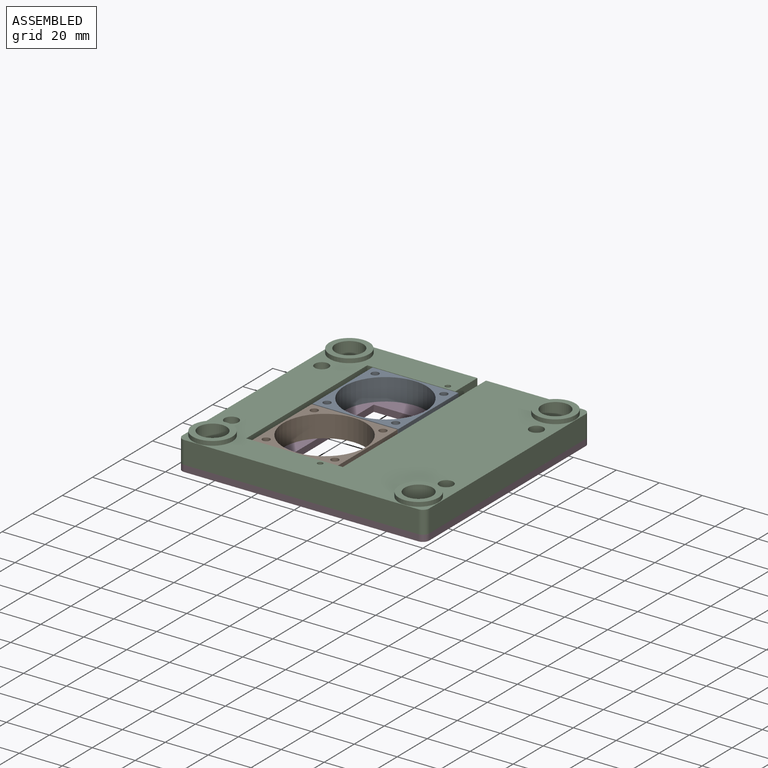
[diagram: assembled view]
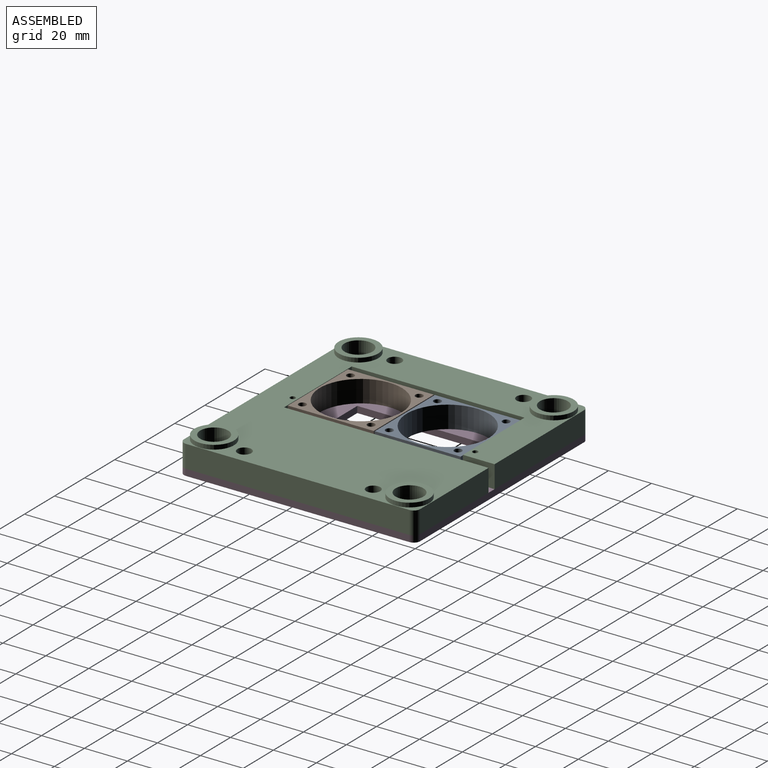
[diagram: assembled view, second angle]
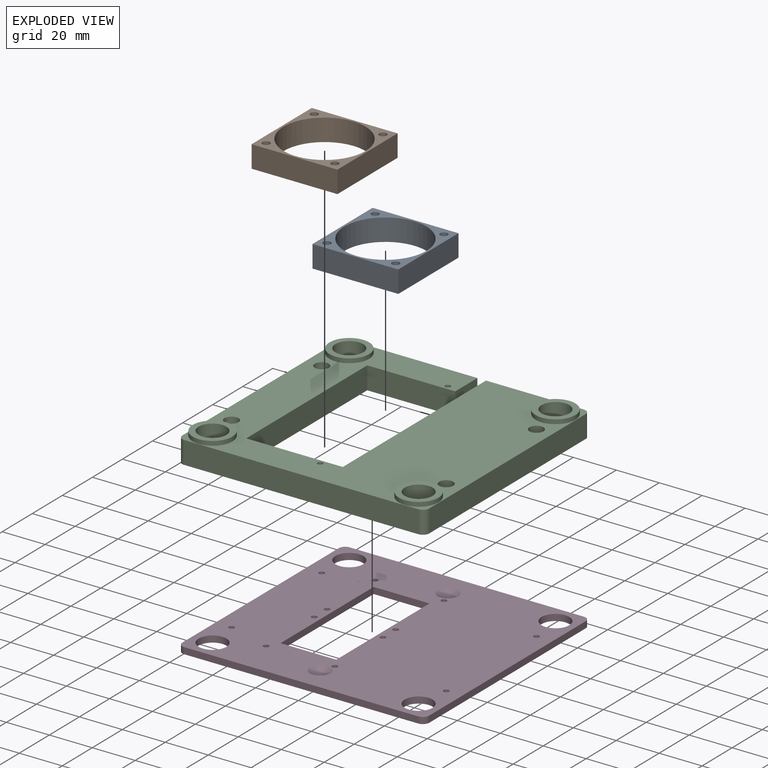
[diagram: exploded view]
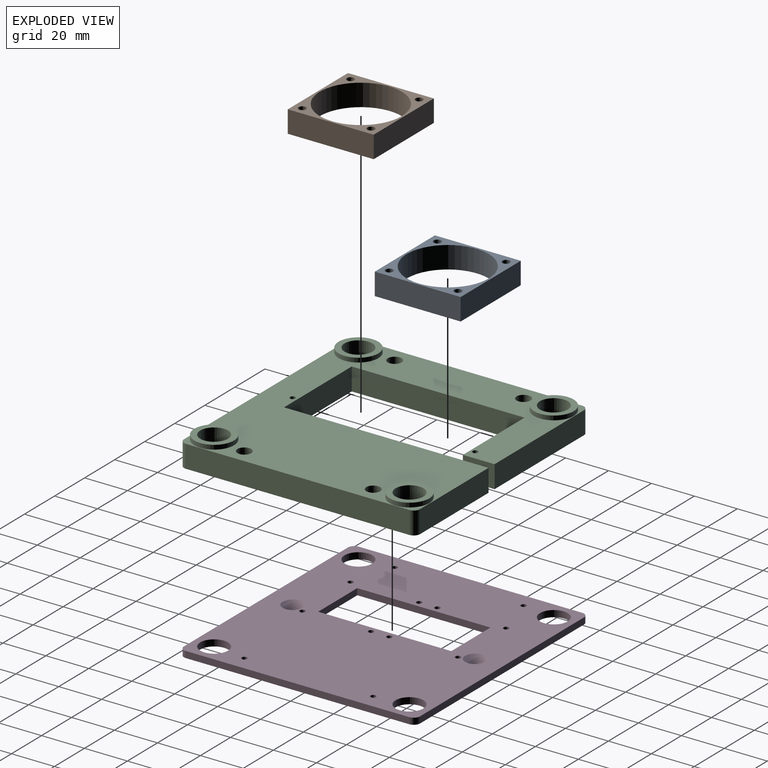
[diagram: exploded view, second angle]
ASSEMBLY  parts=4 mates=3
PART A: 11 faces, bbox 40x40x10.3 mm
  f0: plane 40x10.3mm, normal (0,-1,0), area 412mm2, adj f1,f3,f4,f5
  f1: plane 40x10.3mm, normal (1,0,0), area 412mm2, adj f0,f2,f4,f5
  f2: plane 40x10.3mm, normal (0,1,0), area 412mm2, adj f1,f3,f4,f5
  f3: plane 40x10.3mm, normal (-1,0,0), area 412mm2, adj f0,f2,f4,f5
  f4: plane 40x40mm, normal (0,0,1), area 409.4mm2, adj f0,f1,f2,f3,f6,f7,f8,f9
  f5: plane 40x40mm, normal (0,0,-1), area 409.4mm2, adj f0,f1,f2,f3,f6,f7,f8,f9
  f6: cylinder r=1.75mm len=10.3mm, axis (0,0,1), area 113.3mm2, adj f4,f5
  f7: cylinder r=1.75mm len=10.3mm, axis (0,0,1), area 113.3mm2, adj f4,f5
  f8: cylinder r=1.75mm len=10.3mm, axis (0,0,1), area 113.3mm2, adj f4,f5
  f9: cylinder r=1.75mm len=10.3mm, axis (0,0,1), area 113.3mm2, adj f4,f5
  f10: cylinder r=19.15mm len=38.3mm, axis (0,0,1), area 1239.3mm2, adj f4,f5
PART B: same geometry as A
PART C: 42 faces, bbox 115x110x12.5 mm
  f0: plane 45.5x10.5mm, normal (0,-1,0), area 477.8mm2, adj f1,f10,f13,f26
  f1: plane 115x110mm, normal (0,0,-1), area 7743mm2, adj f0,f2,f3,f4,f9,f11,f12,f13
  f2: plane 59.5x10.5mm, normal (0,-1,0), area 624.8mm2, adj f1,f10,f25,f41
  f3: plane 104x10.5mm, normal (1,0,0), area 1092mm2, adj f1,f10,f26,f27
  f4: plane 109x10.5mm, normal (0,1,0), area 1144.5mm2, adj f1,f10,f27,f28
  f5: cylinder r=6.5mm len=13mm, axis (0,0,1), area 510.5mm2, adj f10,f18
  f6: cylinder r=6.5mm len=13mm, axis (0,0,1), area 510.5mm2, adj f10,f20
  f7: cylinder r=6.5mm len=13mm, axis (0,0,1), area 510.5mm2, adj f10,f22
  f8: cylinder r=6.5mm len=13mm, axis (0,0,1), area 510.5mm2, adj f10,f24
  f9: plane 104x10.5mm, normal (-1,0,0), area 1092mm2, adj f1,f10,f25,f28
  f10: plane 115x110mm, normal (0,0,1), area 8381.5mm2, adj f0,f2,f3,f4,f5,f6,f7,f8
  f11: plane 80.5x10.5mm, normal (1,0,0), area 845.2mm2, adj f1,f10,f12,f14
  f12: plane 41x10.5mm, normal (0,1,0), area 430.5mm2, adj f1,f10,f11,f41
  f13: plane 95.25x10.5mm, normal (-1,0,0), area 1000.1mm2, adj f0,f1,f10,f14
  f14: plane 45x10.5mm, normal (0,-1,0), area 472.5mm2, adj f1,f10,f11,f13
  f15: cylinder r=1.25mm len=10.5mm, axis (0,0,1), area 82.5mm2, adj f1,f10
  f16: cylinder r=1.25mm len=10.5mm, axis (0,0,1), area 82.5mm2, adj f1,f10
  f17: cylinder r=9.25mm len=18.5mm, axis (0,0,-1), area 116.2mm2, adj f1,f18
  f18: plane 18.5x18.5mm, normal (0,0,-1), area 136.1mm2, adj f5,f17
  f19: cylinder r=9.25mm len=18.5mm, axis (0,0,-1), area 116.2mm2, adj f1,f20
  f20: plane 18.5x18.5mm, normal (0,0,-1), area 136.1mm2, adj f6,f19
  f21: cylinder r=9.25mm len=18.5mm, axis (0,0,-1), area 116.2mm2, adj f1,f22
  f22: plane 18.5x18.5mm, normal (0,0,-1), area 136.1mm2, adj f7,f21
  f23: cylinder r=9.25mm len=18.5mm, axis (0,0,-1), area 116.2mm2, adj f1,f24
  f24: plane 18.5x18.5mm, normal (0,0,-1), area 136.1mm2, adj f8,f23
  f25: cylinder r=3mm len=10.5mm, axis (0,0,1), area 49.5mm2, adj f1,f2,f9,f10
  f26: cylinder r=3mm len=10.5mm, axis (0,0,-1), area 49.5mm2, adj f0,f1,f3,f10
  f27: cylinder r=3mm len=10.5mm, axis (0,0,1), area 49.5mm2, adj f1,f3,f4,f10
  f28: cylinder r=3mm len=10.5mm, axis (0,0,-1), area 49.5mm2, adj f1,f4,f9,f10
  f29: cylinder r=1.75mm len=5.5mm, axis (0,0,-1), area 60.5mm2, adj f10,f30
  f30: plane 6.5x6.5mm, normal (0,0,-1), area 23.6mm2, adj f29,f31
  f31: cylinder r=3.25mm len=6.5mm, axis (0,0,-1), area 102.1mm2, adj f1,f30
  f32: cylinder r=1.75mm len=5.5mm, axis (0,0,-1), area 60.5mm2, adj f10,f33
  f33: plane 6.5x6.5mm, normal (0,0,-1), area 23.6mm2, adj f32,f34
  f34: cylinder r=3.25mm len=6.5mm, axis (0,0,-1), area 102.1mm2, adj f1,f33
  f35: cylinder r=1.75mm len=5.5mm, axis (0,0,-1), area 60.5mm2, adj f10,f36
  f36: plane 6.5x6.5mm, normal (0,0,-1), area 23.6mm2, adj f35,f37
  f37: cylinder r=3.25mm len=6.5mm, axis (0,0,-1), area 102.1mm2, adj f1,f36
  f38: cylinder r=1.75mm len=5.5mm, axis (0,0,-1), area 60.5mm2, adj f10,f39
  f39: plane 6.5x6.5mm, normal (0,0,-1), area 23.6mm2, adj f38,f40
  f40: cylinder r=3.25mm len=6.5mm, axis (0,0,-1), area 102.1mm2, adj f1,f39
  f41: plane 14.75x10.5mm, normal (1,0,0), area 154.9mm2, adj f1,f2,f10,f12
PART D: 32 faces, bbox 115x110x3 mm
  f0: plane 109x3mm, normal (0,-1,0), area 327mm2, adj f8,f9,f24,f25
  f1: plane 104x3mm, normal (1,0,0), area 312mm2, adj f8,f9,f25,f26
  f2: plane 109x3mm, normal (0,1,0), area 327mm2, adj f8,f9,f26,f27
  f3: plane 62x3mm, normal (-1,0,0), area 186mm2, adj f4,f6,f8,f9
  f4: plane 26x3mm, normal (0,1,0), area 78mm2, adj f3,f5,f8,f9
  f5: plane 62x3mm, normal (1,0,0), area 186mm2, adj f4,f6,f8,f9
  f6: plane 26x3mm, normal (0,-1,0), area 78mm2, adj f3,f5,f8,f9
  f7: plane 104x3mm, normal (-1,0,0), area 312mm2, adj f8,f9,f24,f27
  f8: plane 115x110mm, normal (0,0,1), area 10298.7mm2, adj f0,f1,f2,f3,f4,f5,f6,f7
  f9: plane 115x110mm, normal (0,0,-1), area 10421.2mm2, adj f0,f1,f2,f3,f4,f5,f6,f7
  f10: cone r=4.75mm half-angle=45deg, axis (0,0,1), area 86.6mm2, adj f8,f9
  f11: cone r=4.75mm half-angle=45deg, axis (0,0,1), area 86.6mm2, adj f8,f9
  f12: cylinder r=1.25mm len=3mm, axis (0,0,1), area 23.6mm2, adj f8,f9
  f13: cylinder r=1.25mm len=3mm, axis (0,0,1), area 23.6mm2, adj f8,f9
  f14: cylinder r=1.25mm len=3mm, axis (0,0,1), area 23.6mm2, adj f8,f9
  f15: cylinder r=1.25mm len=3mm, axis (0,0,1), area 23.6mm2, adj f8,f9
  f16: cylinder r=1.25mm len=3mm, axis (0,0,1), area 23.6mm2, adj f8,f9
  f17: cylinder r=1.25mm len=3mm, axis (0,0,1), area 23.6mm2, adj f8,f9
  f18: cylinder r=1.25mm len=3mm, axis (0,0,1), area 23.6mm2, adj f8,f9
  f19: cylinder r=1.25mm len=3mm, axis (0,0,1), area 23.6mm2, adj f8,f9
  f20: cylinder r=6.5mm len=13mm, axis (0,0,1), area 122.5mm2, adj f8,f9
  f21: cylinder r=6.5mm len=13mm, axis (0,0,1), area 122.5mm2, adj f8,f9
  f22: cylinder r=6.5mm len=13mm, axis (0,0,1), area 122.5mm2, adj f8,f9
  f23: cylinder r=6.5mm len=13mm, axis (0,0,1), area 122.5mm2, adj f8,f9
  f24: cylinder r=3mm len=3mm, axis (0,0,1), area 14.1mm2, adj f0,f7,f8,f9
  f25: cylinder r=3mm len=3mm, axis (0,0,-1), area 14.1mm2, adj f0,f1,f8,f9
  f26: cylinder r=3mm len=3mm, axis (0,0,1), area 14.1mm2, adj f1,f2,f8,f9
  f27: cylinder r=3mm len=3mm, axis (0,0,-1), area 14.1mm2, adj f2,f7,f8,f9
  f28: cylinder r=1.25mm len=3mm, axis (0,0,1), area 23.6mm2, adj f8,f9
  f29: cylinder r=1.25mm len=3mm, axis (0,0,1), area 23.6mm2, adj f8,f9
  f30: cylinder r=1.25mm len=3mm, axis (0,0,1), area 23.6mm2, adj f8,f9
  f31: cylinder r=1.25mm len=3mm, axis (0,0,1), area 23.6mm2, adj f8,f9
PLACE A t=(-15.64,20.25,3)mm
PLACE B rot(axis=(0,0,1),90deg) t=(-15.64,-20.25,3)mm
PLACE C rot(axis=(1,0,0),180deg) t=(-2.14,0,13.5)mm
PLACE D t=(-2.14,0,0)mm
MATE fastened D.f23 <-> C.f5  axis (0,0,1) through (-50.14,45.5,3)mm
MATE fastened D.f13 <-> B.f6  axis (0,0,1) through (-31.64,-36.25,3)mm
MATE fastened D.f12 <-> A.f6  axis (0,0,1) through (-31.64,36.25,3)mm
